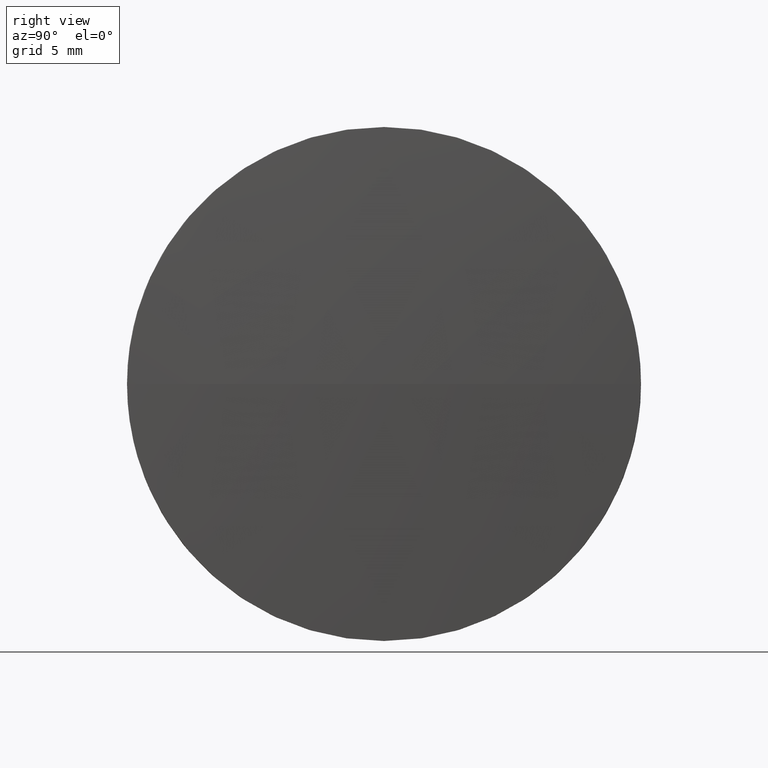
[diagram: clean part render]
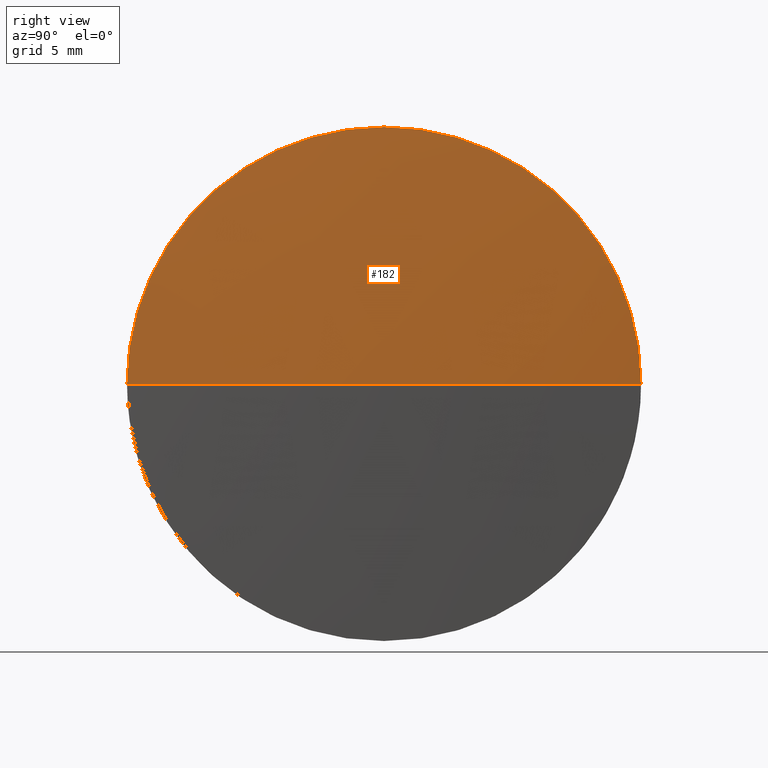
[diagram: same view with one face highlighted and labeled with its STEP entity id]
A machine part, right view. The second image highlights one B-rep face of the part: STEP entity #182.
In plain terms, the highlighted spherical surface has radius 201.812 mm.
Its self-contained STEP definition (entity closure, byte-faithful):
#5 = AXIS2_PLACEMENT_3D ( 'NONE', #108, #26, #8 ) ;
#7 = VERTEX_POINT ( 'NONE', #74 ) ;
#8 = DIRECTION ( 'NONE',  ( 0.0000000000000000000, 0.0000000000000000000, 1.000000000000000000 ) ) ;
#10 = DIRECTION ( 'NONE',  ( -0.0000000000000000000, 0.0000000000000000000, 1.000000000000000000 ) ) ;
#16 = EDGE_CURVE ( 'NONE', #7, #86, #87, .T. ) ;
#17 = CIRCLE ( 'NONE', #60, 201.8124999999973600 ) ;
#19 = CIRCLE ( 'NONE', #5, 12.69999999999998900 ) ;
#24 = ORIENTED_EDGE ( 'NONE', *, *, #16, .F. ) ;
#26 = DIRECTION ( 'NONE',  ( -1.000000000000000000, -0.0000000000000000000, -0.0000000000000000000 ) ) ;
#27 = VERTEX_POINT ( 'NONE', #166 ) ;
#28 = DIRECTION ( 'NONE',  ( 1.000000000000000000, 0.0000000000000000000, 0.0000000000000000000 ) ) ;
#44 = SPHERICAL_SURFACE ( 'NONE', #150, 201.8124999999973600 ) ;
#52 = DIRECTION ( 'NONE',  ( 0.0000000000000000000, 1.000000000000000000, 0.0000000000000000000 ) ) ;
#53 = ORIENTED_EDGE ( 'NONE', *, *, #159, .F. ) ;
#57 = CARTESIAN_POINT ( 'NONE',  ( 351.6685238677177400, 164.5395787280306200, 0.0000000000000000000 ) ) ;
#60 = AXIS2_PLACEMENT_3D ( 'NONE', #107, #10, #28 ) ;
#64 = CARTESIAN_POINT ( 'NONE',  ( 150.2560238677204400, 151.8395787280305200, 0.0000000000000000000 ) ) ;
#66 = AXIS2_PLACEMENT_3D ( 'NONE', #64, #116, #111 ) ;
#71 = ORIENTED_EDGE ( 'NONE', *, *, #115, .F. ) ;
#74 = CARTESIAN_POINT ( 'NONE',  ( 351.6685238677177900, 151.8395787280306900, 12.69999999999998900 ) ) ;
#76 = CARTESIAN_POINT ( 'NONE',  ( 352.0685238677178300, 151.8395787280305200, 0.0000000000000000000 ) ) ;
#86 = VERTEX_POINT ( 'NONE', #57 ) ;
#87 = CIRCLE ( 'NONE', #164, 12.69999999999998900 ) ;
#90 = CARTESIAN_POINT ( 'NONE',  ( 351.6685238677177900, 151.8395787280306900, 0.0000000000000000000 ) ) ;
#100 = DIRECTION ( 'NONE',  ( -0.0000000000000000000, 0.0000000000000000000, -1.000000000000000000 ) ) ;
#105 = DIRECTION ( 'NONE',  ( 0.0000000000000000000, 0.0000000000000000000, 1.000000000000000000 ) ) ;
#107 = CARTESIAN_POINT ( 'NONE',  ( 150.2560238677204400, 151.8395787280305200, 0.0000000000000000000 ) ) ;
#108 = CARTESIAN_POINT ( 'NONE',  ( 351.6685238677177900, 151.8395787280306900, 0.0000000000000000000 ) ) ;
#111 = DIRECTION ( 'NONE',  ( 0.0000000000000000000, 1.000000000000000000, 1.224646799147353200E-016 ) ) ;
#115 = EDGE_CURVE ( 'NONE', #27, #7, #19, .T. ) ;
#116 = DIRECTION ( 'NONE',  ( 0.0000000000000000000, 1.224646799147353200E-016, -1.000000000000000000 ) ) ;
#126 = CIRCLE ( 'NONE', #66, 201.8124999999973600 ) ;
#134 = DIRECTION ( 'NONE',  ( -1.000000000000000000, -0.0000000000000000000, -0.0000000000000000000 ) ) ;
#137 = VERTEX_POINT ( 'NONE', #76 ) ;
#139 = EDGE_CURVE ( 'NONE', #137, #86, #17, .T. ) ;
#150 = AXIS2_PLACEMENT_3D ( 'NONE', #151, #100, #52 ) ;
#151 = CARTESIAN_POINT ( 'NONE',  ( 150.2560238677204400, 151.8395787280305200, 0.0000000000000000000 ) ) ;
#158 = EDGE_LOOP ( 'NONE', ( #53, #171, #24, #71 ) ) ;
#159 = EDGE_CURVE ( 'NONE', #137, #27, #126, .T. ) ;
#164 = AXIS2_PLACEMENT_3D ( 'NONE', #90, #134, #105 ) ;
#166 = CARTESIAN_POINT ( 'NONE',  ( 351.6685238677177400, 139.1395787280305900, -1.555301434917131900E-015 ) ) ;
#171 = ORIENTED_EDGE ( 'NONE', *, *, #139, .T. ) ;
#178 = FACE_OUTER_BOUND ( 'NONE', #158, .T. ) ;
#182 = ADVANCED_FACE ( 'NONE', ( #178 ), #44, .T. ) ;